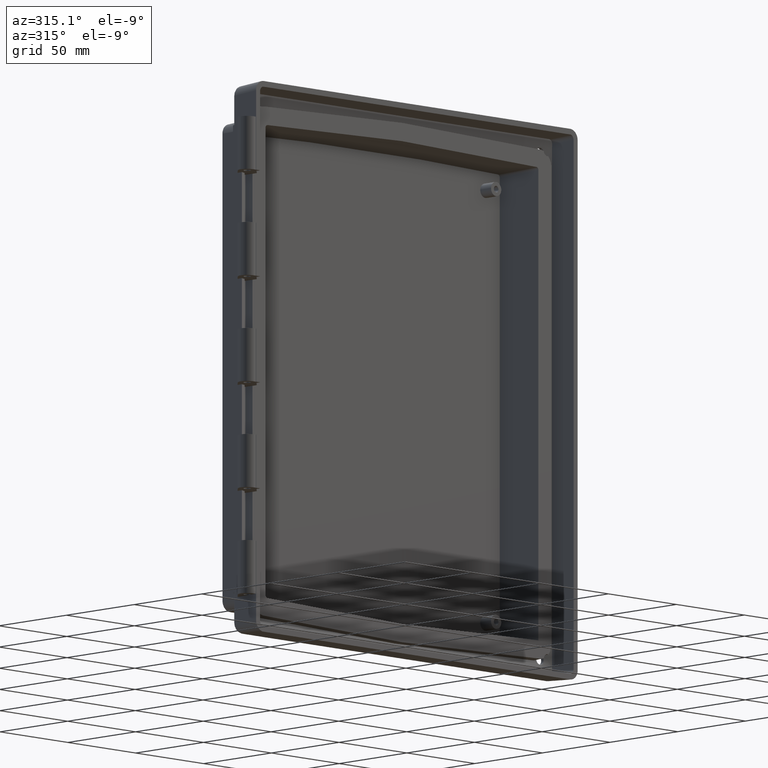
[diagram: clean part render]
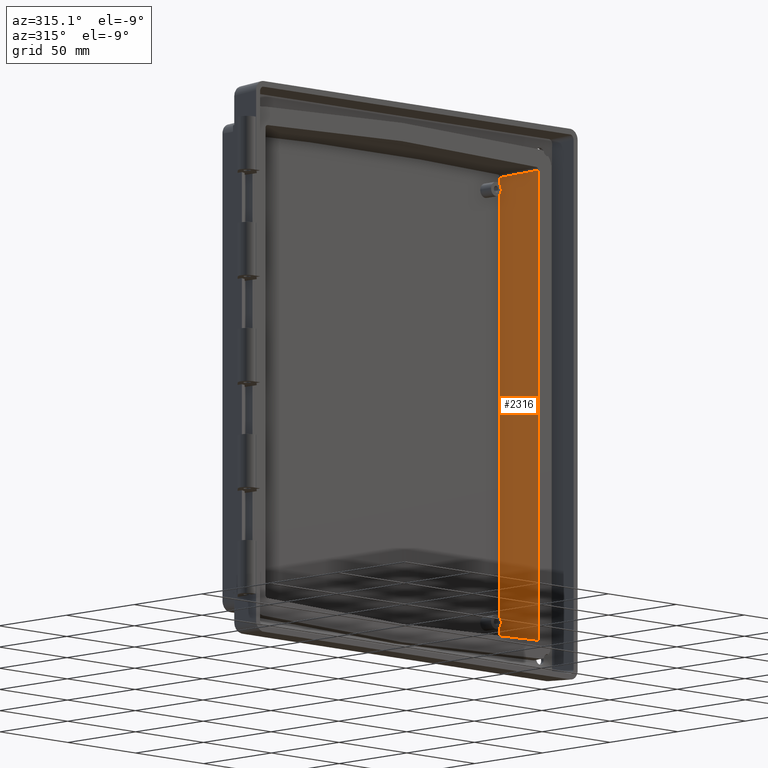
[diagram: same view with one face highlighted and labeled with its STEP entity id]
A machine part, auxiliary view. The second image highlights one B-rep face of the part: STEP entity #2316.
In plain terms, the highlighted planar face has unit normal (-0.9994, -0.0349, 0).
Its self-contained STEP definition (entity closure, byte-faithful):
#865 = VERTEX_POINT ( 'NONE', #5341 ) ;
#867 = EDGE_CURVE ( 'NONE', #865, #868, #5340, .T. ) ;
#868 = VERTEX_POINT ( 'NONE', #5332 ) ;
#1425 = ORIENTED_EDGE ( 'NONE', *, *, #2288, .T. ) ;
#1785 = EDGE_CURVE ( 'NONE', #865, #1786, #7080, .T. ) ;
#1786 = VERTEX_POINT ( 'NONE', #7076 ) ;
#2256 = EDGE_CURVE ( 'NONE', #1786, #2257, #8073, .T. ) ;
#2257 = VERTEX_POINT ( 'NONE', #8066 ) ;
#2278 = EDGE_CURVE ( 'NONE', #2279, #2257, #8103, .T. ) ;
#2279 = VERTEX_POINT ( 'NONE', #8088 ) ;
#2288 = EDGE_CURVE ( 'NONE', #2279, #868, #8155, .T. ) ;
#2316 = ADVANCED_FACE ( 'NONE', ( #8166 ), #8216, .T. ) ;
#2317 = EDGE_LOOP ( 'NONE', ( #2318, #2319, #2320, #2321, #1425 ) ) ;
#2318 = ORIENTED_EDGE ( 'NONE', *, *, #867, .F. ) ;
#2319 = ORIENTED_EDGE ( 'NONE', *, *, #1785, .T. ) ;
#2320 = ORIENTED_EDGE ( 'NONE', *, *, #2256, .T. ) ;
#2321 = ORIENTED_EDGE ( 'NONE', *, *, #2278, .F. ) ;
#5332 = CARTESIAN_POINT ( 'NONE',  ( 100.4602804365596400, 3.000000000000000000, -124.8979450773852200 ) ) ;
#5333 = DIRECTION ( 'NONE',  ( -0.0000000000000000000, -0.0000000000000000000, -1.000000000000000000 ) ) ;
#5334 = VECTOR ( 'NONE', #5333, 1000.000000000000000 ) ;
#5335 = CARTESIAN_POINT ( 'NONE',  ( 100.4602804365596600, 3.000000000000000000, -125.0000000000000000 ) ) ;
#5340 = LINE ( 'NONE', #5335, #5334 ) ;
#5341 = CARTESIAN_POINT ( 'NONE',  ( 100.4602804365596600, 3.000000000000000000, 123.4375999160700300 ) ) ;
#7076 = CARTESIAN_POINT ( 'NONE',  ( 99.50607498991161000, 30.32486885415082200, 122.5080541239470200 ) ) ;
#7077 = DIRECTION ( 'NONE',  ( -0.03487934512674303900, 0.9988137613916394700, -0.03397795370846537500 ) ) ;
#7078 = VECTOR ( 'NONE', #7077, 1000.000000000000100 ) ;
#7079 = CARTESIAN_POINT ( 'NONE',  ( 100.2704912485811700, 8.434851257310702600, 123.2527154745742000 ) ) ;
#7080 = LINE ( 'NONE', #7079, #7078 ) ;
#8066 = CARTESIAN_POINT ( 'NONE',  ( 99.50607498991165300, 30.32486885414977700, -123.4089529669270300 ) ) ;
#8067 = DIRECTION ( 'NONE',  ( 2.123625750854941700E-016, -6.081268487960381800E-015, -1.000000000000000000 ) ) ;
#8068 = VECTOR ( 'NONE', #8067, 1000.000000000000000 ) ;
#8069 = CARTESIAN_POINT ( 'NONE',  ( 99.50607498991166700, 30.32486885414931500, -125.0000000000002000 ) ) ;
#8073 = LINE ( 'NONE', #8069, #8068 ) ;
#8084 = CARTESIAN_POINT ( 'NONE',  ( 99.50607498991165300, 30.32486885414977700, -123.4089529669270300 ) ) ;
#8085 = CARTESIAN_POINT ( 'NONE',  ( 99.50607498991165300, 30.32486885414923700, -123.5765888697745100 ) ) ;
#8086 = CARTESIAN_POINT ( 'NONE',  ( 99.54591499675152000, 29.18400032748979500, -123.8027691397271600 ) ) ;
#8087 = CARTESIAN_POINT ( 'NONE',  ( 99.62502873154345200, 26.91847937983109100, -124.0842788899946400 ) ) ;
#8088 = CARTESIAN_POINT ( 'NONE',  ( 99.62502873154345200, 26.91847937983109100, -124.0842788899946400 ) ) ;
#8103 =( BOUNDED_CURVE ( )  B_SPLINE_CURVE ( 3, ( #8087, #8086, #8085, #8084 ),
 .UNSPECIFIED., .F., .F. ) 
 B_SPLINE_CURVE_WITH_KNOTS ( ( 4, 4 ),
 ( 2.902095437246060800, 3.140680374864127000 ),
 .UNSPECIFIED. ) 
 CURVE ( )  GEOMETRIC_REPRESENTATION_ITEM ( )  RATIONAL_B_SPLINE_CURVE ( ( 1.000000000000000000, 0.9952620583114753000, 0.9952620583114753000, 1.000000000000000000 ) ) 
 REPRESENTATION_ITEM ( '' )  );
#8147 = DIRECTION ( 'NONE',  ( 0.03487934512674303200, -0.9988137613916394700, -0.03397795370846537500 ) ) ;
#8148 = VECTOR ( 'NONE', #8147, 1000.000000000000000 ) ;
#8149 = CARTESIAN_POINT ( 'NONE',  ( 100.4458193643344700, 3.414110926983214200, -124.8838577245161600 ) ) ;
#8155 = LINE ( 'NONE', #8149, #8148 ) ;
#8166 = FACE_OUTER_BOUND ( 'NONE', #2317, .T. ) ;
#8212 = DIRECTION ( 'NONE',  ( 0.03489949670250104600, -0.9993908270190956500, 0.0000000000000000000 ) ) ;
#8213 = DIRECTION ( 'NONE',  ( -0.9993908270190957600, -0.03489949670250105200, 0.0000000000000000000 ) ) ;
#8214 = CARTESIAN_POINT ( 'NONE',  ( 100.5650427450349000, 3.469446951953614200E-015, -125.0000000000000000 ) ) ;
#8215 = AXIS2_PLACEMENT_3D ( 'NONE', #8214, #8213, #8212 ) ;
#8216 = PLANE ( 'NONE',  #8215 ) ;